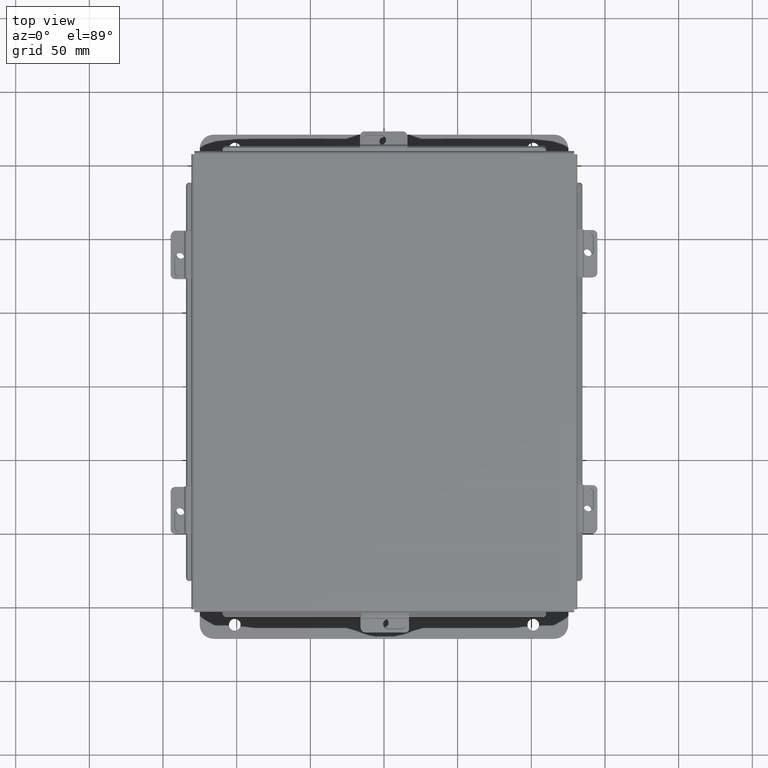
[diagram: clean part render]
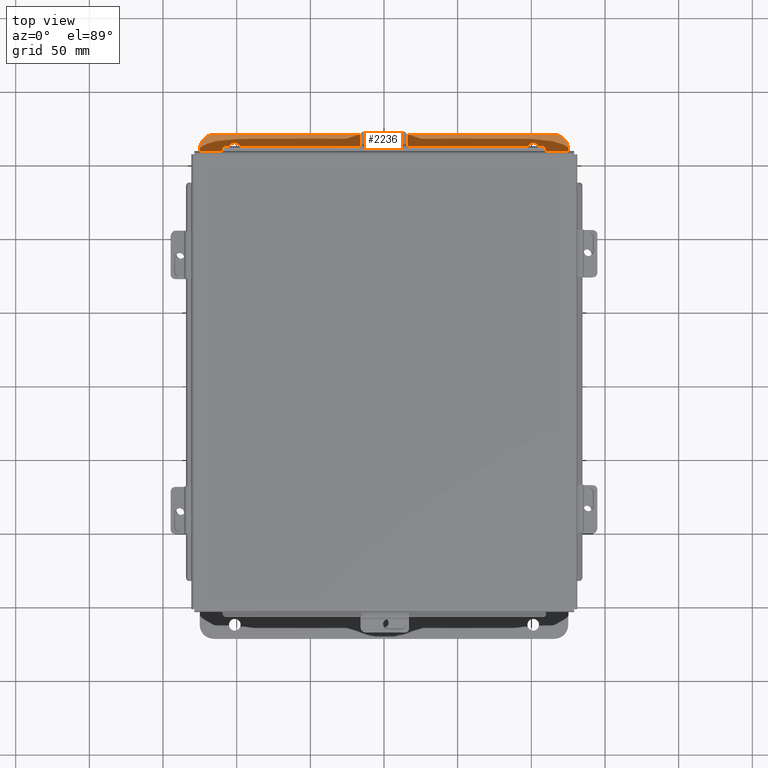
[diagram: same view with one face highlighted and labeled with its STEP entity id]
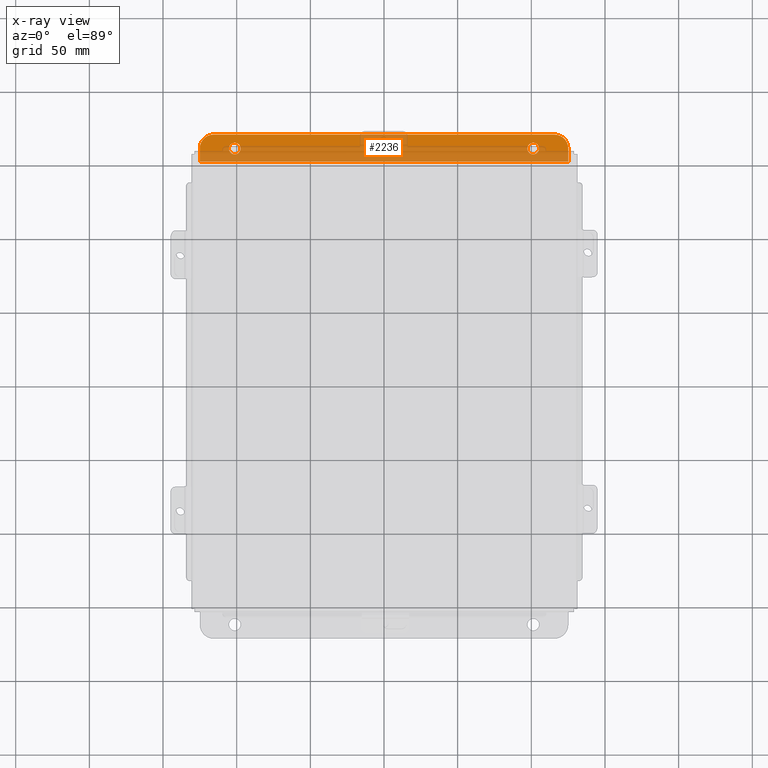
[diagram: x-ray of the same camera — body ghosted, the highlighted face saturated]
A machine part, top view. The second image highlights one B-rep face of the part: STEP entity #2236.
The next image is the same camera in x-ray: the body ghosted, the highlighted face saturated — about 60% of this face is hidden behind the body in this view.
In plain terms, the highlighted planar face has unit normal (0, 0, 1).
Its self-contained STEP definition (entity closure, byte-faithful):
#282 = VERTEX_POINT ( 'NONE', #3947 ) ;
#300 = FACE_BOUND ( 'NONE', #2532, .T. ) ;
#350 = CARTESIAN_POINT ( 'NONE',  ( -3.987800000000000900, 0.5187999999999956000, -4.112300000000002100 ) ) ;
#416 = EDGE_CURVE ( 'NONE', #4551, #7874, #7671, .T. ) ;
#461 = CARTESIAN_POINT ( 'NONE',  ( 4.925300000000000000, 0.01300000000000010700, -4.112300000000001200 ) ) ;
#586 = DIRECTION ( 'NONE',  ( 0.0000000000000000000, -1.000000000000000000, 4.370956789862820400E-015 ) ) ;
#629 = AXIS2_PLACEMENT_3D ( 'NONE', #8589, #4258, #8620 ) ;
#924 = CARTESIAN_POINT ( 'NONE',  ( -4.925299999999999100, 0.01299999999999901400, -4.112300000000001200 ) ) ;
#1252 = FACE_OUTER_BOUND ( 'NONE', #9640, .T. ) ;
#1288 = CARTESIAN_POINT ( 'NONE',  ( -4.550300000000000000, 0.7378000000000000100, -4.112300000000003800 ) ) ;
#1308 = EDGE_CURVE ( 'NONE', #2263, #6261, #6878, .T. ) ;
#1309 = CARTESIAN_POINT ( 'NONE',  ( 4.925300000000000000, 0.0000000000000000000, -4.112300000000001200 ) ) ;
#1453 = AXIS2_PLACEMENT_3D ( 'NONE', #3977, #7712, #6970 ) ;
#1590 = ORIENTED_EDGE ( 'NONE', *, *, #6342, .F. ) ;
#1910 = ORIENTED_EDGE ( 'NONE', *, *, #3078, .T. ) ;
#1929 = ORIENTED_EDGE ( 'NONE', *, *, #4964, .T. ) ;
#1960 = AXIS2_PLACEMENT_3D ( 'NONE', #9474, #8856, #8828 ) ;
#1981 = CARTESIAN_POINT ( 'NONE',  ( 4.550300000000000000, 0.7378000000000000100, -4.112300000000003800 ) ) ;
#1986 = AXIS2_PLACEMENT_3D ( 'NONE', #7713, #3250, #8442 ) ;
#2070 = EDGE_LOOP ( 'NONE', ( #3237, #7421 ) ) ;
#2092 = CARTESIAN_POINT ( 'NONE',  ( -3.987800000000000900, 0.2067999999999952100, -4.112300000000001200 ) ) ;
#2146 = CIRCLE ( 'NONE', #1986, 0.1560000000000001700 ) ;
#2223 = FACE_BOUND ( 'NONE', #2070, .T. ) ;
#2236 = ADVANCED_FACE ( 'NONE', ( #2223, #300, #1252 ), #5086, .T. ) ;
#2263 = VERTEX_POINT ( 'NONE', #1288 ) ;
#2532 = EDGE_LOOP ( 'NONE', ( #7143, #1929 ) ) ;
#2790 = LINE ( 'NONE', #1309, #4749 ) ;
#2813 = CARTESIAN_POINT ( 'NONE',  ( 4.925300000000000000, 0.7378000000000000100, -4.112300000000003800 ) ) ;
#2880 = VERTEX_POINT ( 'NONE', #1981 ) ;
#3078 = EDGE_CURVE ( 'NONE', #6498, #2880, #8717, .T. ) ;
#3237 = ORIENTED_EDGE ( 'NONE', *, *, #4203, .T. ) ;
#3250 = DIRECTION ( 'NONE',  ( -0.0000000000000000000, -3.702694488566362300E-015, -1.000000000000000000 ) ) ;
#3419 = CARTESIAN_POINT ( 'NONE',  ( -4.925300000000000000, 0.3628000000000008400, -4.112300000000002100 ) ) ;
#3555 = DIRECTION ( 'NONE',  ( 1.000000000000000000, -0.0000000000000000000, -0.0000000000000000000 ) ) ;
#3604 = CARTESIAN_POINT ( 'NONE',  ( 3.987800000000000000, 0.3627999999999954000, -4.112300000000002100 ) ) ;
#3947 = CARTESIAN_POINT ( 'NONE',  ( 3.987800000000000000, 0.5187999999999956000, -4.112300000000002100 ) ) ;
#3977 = CARTESIAN_POINT ( 'NONE',  ( -3.987800000000000900, 0.3627999999999954000, -4.112300000000002100 ) ) ;
#4015 = AXIS2_PLACEMENT_3D ( 'NONE', #3604, #8800, #4346 ) ;
#4097 = VECTOR ( 'NONE', #9703, 39.37007874015748100 ) ;
#4203 = EDGE_CURVE ( 'NONE', #7874, #4551, #5283, .T. ) ;
#4258 = DIRECTION ( 'NONE',  ( 0.0000000000000000000, 3.702694488566362300E-015, 1.000000000000000000 ) ) ;
#4328 = AXIS2_PLACEMENT_3D ( 'NONE', #7934, #6194, #5447 ) ;
#4346 = DIRECTION ( 'NONE',  ( 0.0000000000000000000, -1.000000000000000000, 3.502369222646487400E-015 ) ) ;
#4551 = VERTEX_POINT ( 'NONE', #2092 ) ;
#4577 = LINE ( 'NONE', #2813, #8534 ) ;
#4708 = CARTESIAN_POINT ( 'NONE',  ( -4.550300000000000000, 0.3628000000000008400, -4.112300000000002100 ) ) ;
#4749 = VECTOR ( 'NONE', #5837, 39.37007874015748100 ) ;
#4964 = EDGE_CURVE ( 'NONE', #6965, #282, #2146, .T. ) ;
#5086 = PLANE ( 'NONE',  #1960 ) ;
#5252 = CARTESIAN_POINT ( 'NONE',  ( -4.925300000000000000, 0.7378000000000000100, -4.112300000000003800 ) ) ;
#5273 = EDGE_CURVE ( 'NONE', #6498, #9377, #2790, .T. ) ;
#5283 = CIRCLE ( 'NONE', #1453, 0.1560000000000001700 ) ;
#5447 = DIRECTION ( 'NONE',  ( 0.0000000000000000000, -1.000000000000000000, 3.502369222646487400E-015 ) ) ;
#5591 = ORIENTED_EDGE ( 'NONE', *, *, #7022, .F. ) ;
#5837 = DIRECTION ( 'NONE',  ( -0.0000000000000000000, -1.000000000000000000, 3.702694488566362300E-015 ) ) ;
#6052 = VERTEX_POINT ( 'NONE', #924 ) ;
#6194 = DIRECTION ( 'NONE',  ( -0.0000000000000000000, -3.702694488566362300E-015, -1.000000000000000000 ) ) ;
#6261 = VERTEX_POINT ( 'NONE', #3419 ) ;
#6342 = EDGE_CURVE ( 'NONE', #2263, #2880, #4577, .T. ) ;
#6345 = VECTOR ( 'NONE', #7259, 39.37007874015748100 ) ;
#6498 = VERTEX_POINT ( 'NONE', #8432 ) ;
#6619 = ORIENTED_EDGE ( 'NONE', *, *, #1308, .T. ) ;
#6834 = EDGE_CURVE ( 'NONE', #282, #6965, #7508, .T. ) ;
#6878 = CIRCLE ( 'NONE', #6995, 0.3750000000000000600 ) ;
#6965 = VERTEX_POINT ( 'NONE', #9653 ) ;
#6970 = DIRECTION ( 'NONE',  ( 0.0000000000000000000, -1.000000000000000000, 3.502369222646487400E-015 ) ) ;
#6995 = AXIS2_PLACEMENT_3D ( 'NONE', #4708, #8413, #586 ) ;
#7022 = EDGE_CURVE ( 'NONE', #6052, #6261, #8094, .T. ) ;
#7143 = ORIENTED_EDGE ( 'NONE', *, *, #6834, .T. ) ;
#7259 = DIRECTION ( 'NONE',  ( -1.000000000000000000, -5.546561617899952800E-017, 2.053722313309188000E-031 ) ) ;
#7421 = ORIENTED_EDGE ( 'NONE', *, *, #416, .T. ) ;
#7508 = CIRCLE ( 'NONE', #4015, 0.1560000000000001700 ) ;
#7671 = CIRCLE ( 'NONE', #4328, 0.1560000000000001700 ) ;
#7712 = DIRECTION ( 'NONE',  ( -0.0000000000000000000, -3.702694488566362300E-015, -1.000000000000000000 ) ) ;
#7713 = CARTESIAN_POINT ( 'NONE',  ( 3.987800000000000000, 0.3627999999999954000, -4.112300000000002100 ) ) ;
#7874 = VERTEX_POINT ( 'NONE', #350 ) ;
#7934 = CARTESIAN_POINT ( 'NONE',  ( -3.987800000000000900, 0.3627999999999954000, -4.112300000000002100 ) ) ;
#8094 = LINE ( 'NONE', #5252, #4097 ) ;
#8322 = LINE ( 'NONE', #461, #6345 ) ;
#8413 = DIRECTION ( 'NONE',  ( 0.0000000000000000000, 3.702694488566362300E-015, 1.000000000000000000 ) ) ;
#8432 = CARTESIAN_POINT ( 'NONE',  ( 4.925300000000000000, 0.3627999999999997300, -4.112300000000002100 ) ) ;
#8442 = DIRECTION ( 'NONE',  ( 0.0000000000000000000, -1.000000000000000000, 3.502369222646487400E-015 ) ) ;
#8534 = VECTOR ( 'NONE', #3555, 39.37007874015748100 ) ;
#8538 = ORIENTED_EDGE ( 'NONE', *, *, #5273, .F. ) ;
#8589 = CARTESIAN_POINT ( 'NONE',  ( 4.550300000000000000, 0.3627999999999997300, -4.112300000000002100 ) ) ;
#8620 = DIRECTION ( 'NONE',  ( 0.0000000000000000000, -1.000000000000000000, 4.370956789862820400E-015 ) ) ;
#8717 = CIRCLE ( 'NONE', #629, 0.3750000000000000600 ) ;
#8800 = DIRECTION ( 'NONE',  ( -0.0000000000000000000, -3.702694488566362300E-015, -1.000000000000000000 ) ) ;
#8828 = DIRECTION ( 'NONE',  ( 0.0000000000000000000, -1.000000000000000000, 3.702694488566362300E-015 ) ) ;
#8856 = DIRECTION ( 'NONE',  ( 0.0000000000000000000, 3.702694488566362300E-015, 1.000000000000000000 ) ) ;
#8966 = ORIENTED_EDGE ( 'NONE', *, *, #8983, .F. ) ;
#8983 = EDGE_CURVE ( 'NONE', #9377, #6052, #8322, .T. ) ;
#9105 = CARTESIAN_POINT ( 'NONE',  ( 4.925300000000000000, 0.01300000000000010700, -4.112300000000001200 ) ) ;
#9377 = VERTEX_POINT ( 'NONE', #9105 ) ;
#9474 = CARTESIAN_POINT ( 'NONE',  ( 0.0000000000000000000, -1.420560956705417000E-014, -4.112300000000001200 ) ) ;
#9640 = EDGE_LOOP ( 'NONE', ( #8538, #1910, #1590, #6619, #5591, #8966 ) ) ;
#9653 = CARTESIAN_POINT ( 'NONE',  ( 3.987800000000000000, 0.2067999999999952100, -4.112300000000001200 ) ) ;
#9703 = DIRECTION ( 'NONE',  ( -0.0000000000000000000, 1.000000000000000000, -3.702694488566362300E-015 ) ) ;